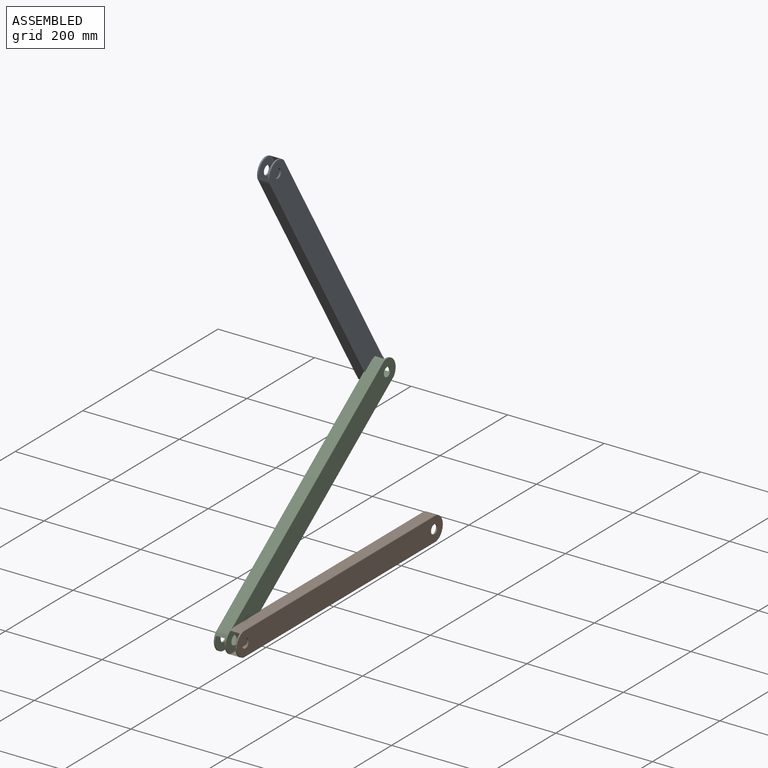
[diagram: assembled view]
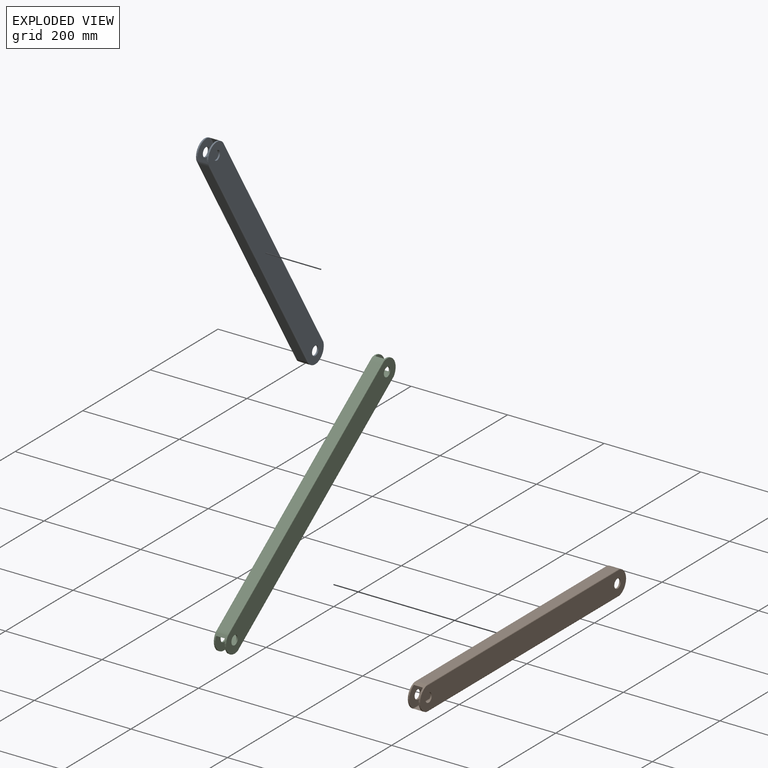
[diagram: exploded view]
GUIDED TOUR — MATED ASSEMBLY (Onshape document 3867bce67e89ffa3d2406594, AutoMate assembly 3867bce67e89ffa3d2406594_331f0cfc6d9f7bca3113b962_40f5c1428207458cdab2e71f_default)

This assembly has 3 components, labeled P0..P2 below (a component is one placed occurrence of a part; the same part can appear more than once), held together by 4 mates. A mate is a constraint between two components; its type names the relative motion it leaves free:
  PARALLEL — keeps the two listed directions parallel,
  REVOLUTE — leaves rotation about the listed axis free (a hinge).
Axis/direction vectors are unit vectors and 'through' points are millimeter coordinates, both in the assembly's world frame.

MATES
  1. REVOLUTE "Revolute 1": P2 <-> P1, axis (1.000, 0.000, 0.000) through (-11.18, -279.40, 0.00) mm
  2. PARALLEL "Parallel 2": P0 <-> P2, direction (1.000, 0.000, 0.000) through (-32.00, 26.16, 568.31) mm
  3. PARALLEL "Parallel 1": P1 <-> P2, direction (-1.000, 0.000, 0.000) through (-12.70, 0.00, 0.00) mm
  4. REVOLUTE "Revolute 2": P0 <-> P2, axis (1.000, 0.000, 0.000) through (-33.53, 171.69, 329.80) mm

ASSEMBLY ORDER
  1. P2 — the base component [order verified]
  2. P0 [order verified]
  3. P1 [order verified]
Order-tag legend:
  [order verified] — this step's position reverses a verified removal order: the component was checked to insert without passing through the ones already placed.

Of the 3 components, 3 carry the full construction recipe — the FeatureScript program that regenerates the part's solid from scratch; the rest are supplied as boundary geometry only.
Each toured component is shown spotlighted twice — in the assembled view, then in the exploded view, where a leader line traces a displaced component back to its assembled socket (saturated green if recipe-attached, orange if geometry-only; every other component desaturated gray) — followed by its recipe or geometry summary and the mates that hold it.
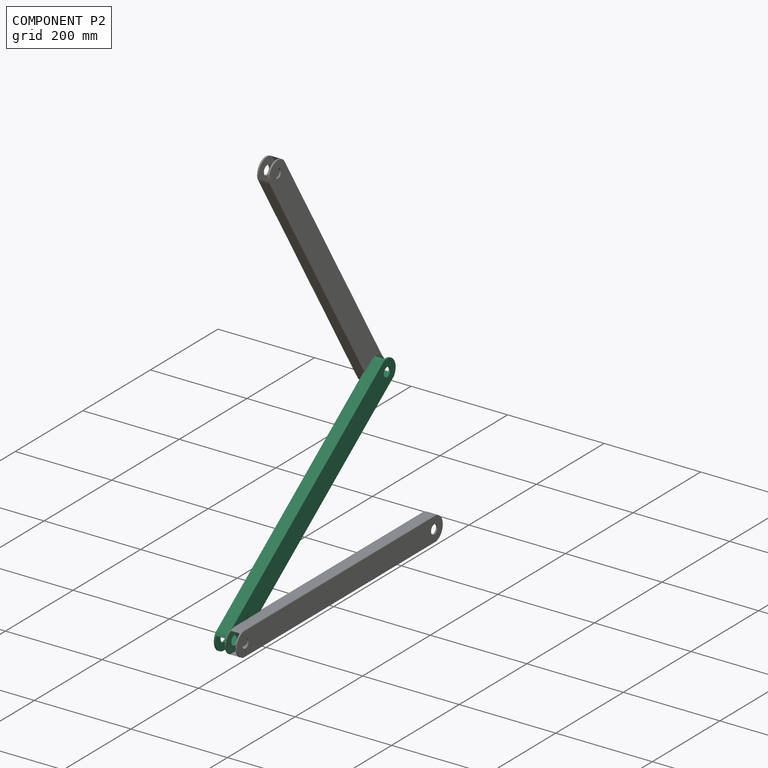
[diagram: component P2 — assembled]
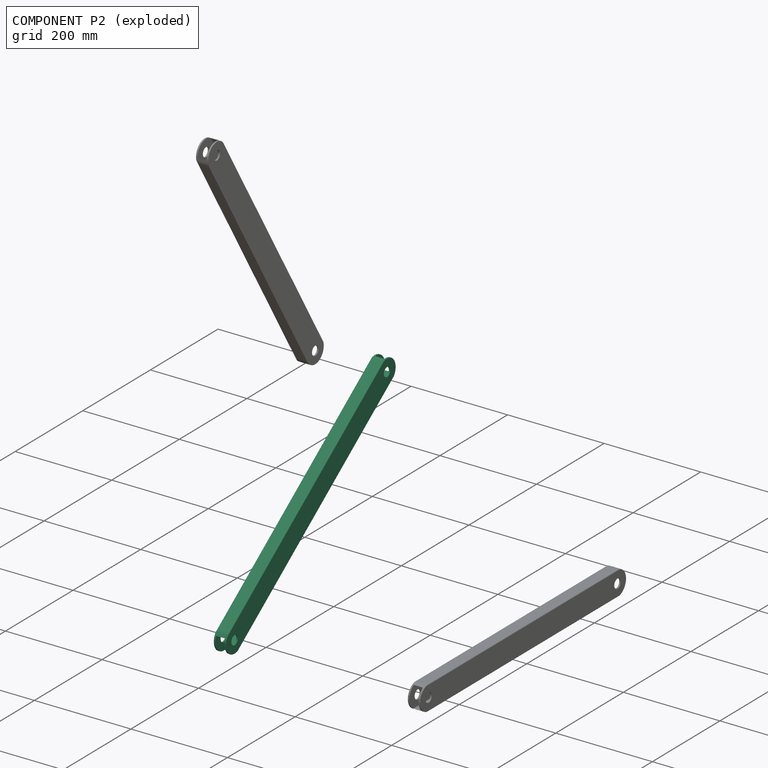
[diagram: component P2 — exploded]
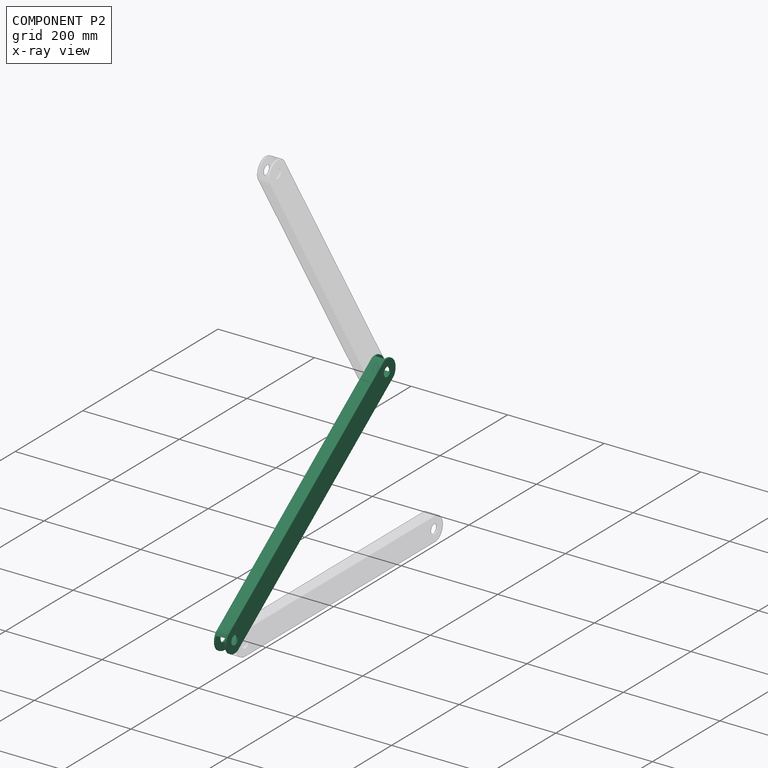
[diagram: component P2 — x-ray view]
COMPONENT P2 — same part as P0 (CADFS 00969226); its construction recipe is shown at P0.
Held by: REVOLUTE mate "Revolute 1" to P1; PARALLEL mate "Parallel 2" to P0; PARALLEL mate "Parallel 1" to P1; REVOLUTE mate "Revolute 2" to P0.
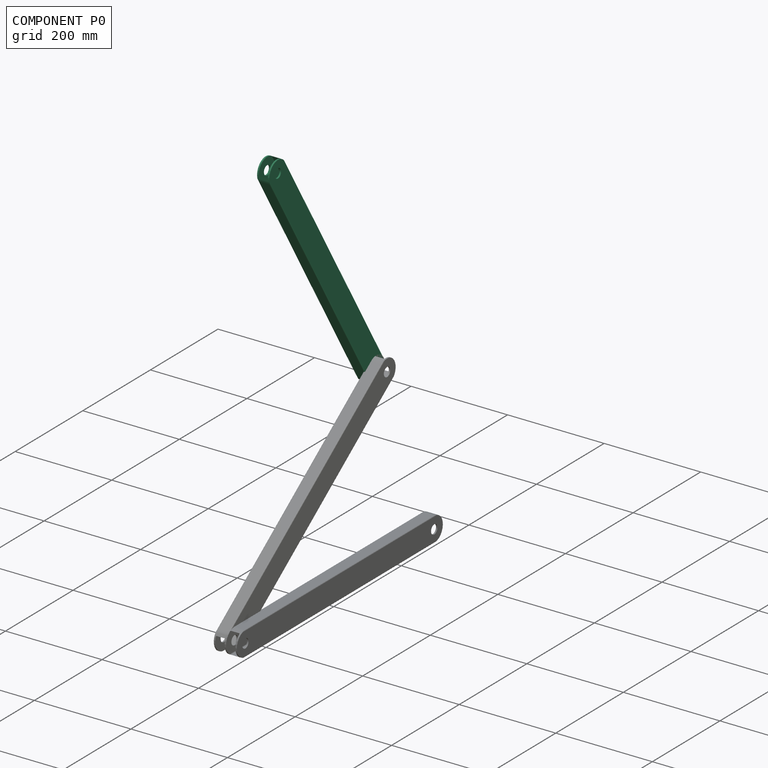
[diagram: component P0 — assembled]
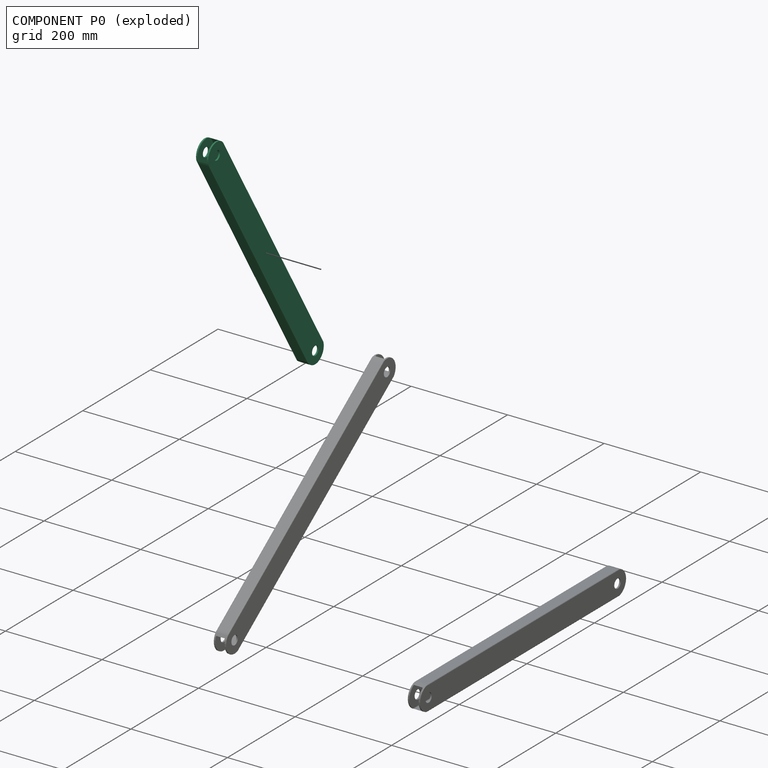
[diagram: component P0 — exploded]
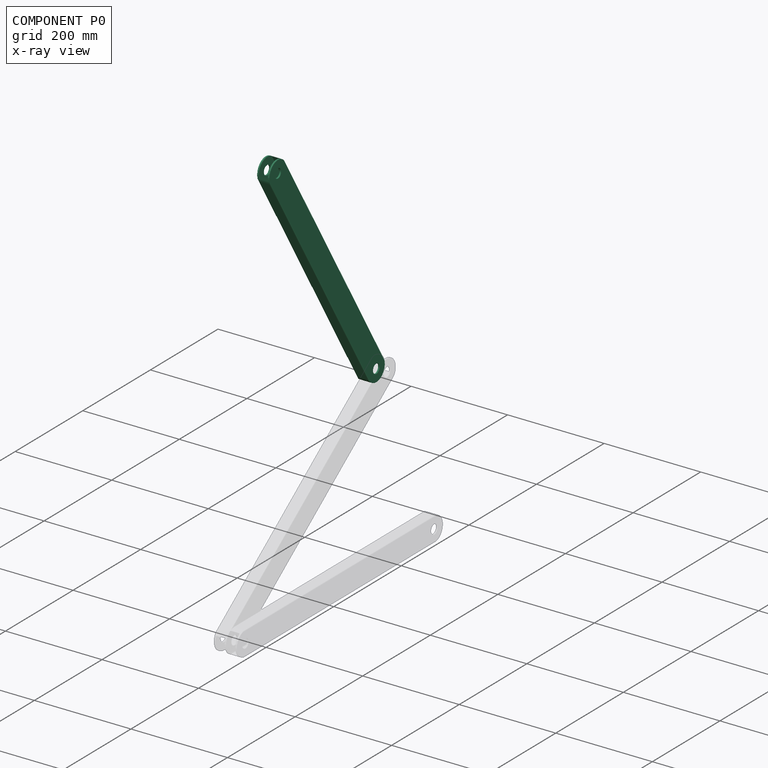
[diagram: component P0 — x-ray view]
COMPONENT P0 — recipe-attached (CADFS 00969226, mesh-verified: the recipe's output STEP matches this component's geometry to below the mesh-comparison resolution (tessellation chordal tolerance ~0.918 mm)).
Held by: PARALLEL mate "Parallel 2" to P2; REVOLUTE mate "Revolute 2" to P2.
Construction recipe (FeatureScript — the CAD program that rebuilds this solid; sketch coordinates are in the units given by the * unit suffixes, e.g. mm):

FeatureScript 1511;
import(path : "onshape/std/geometry.fs", version : "1511.0");
import(path : "onshape/std/common.fs", version : "1511.0");
const mm = millimeter;
const VERTEX = EntityType.VERTEX;
const EDGE = EntityType.EDGE;
const FACE = EntityType.FACE;
const BODY = EntityType.BODY;
function v(x, y){return vector(x, y);}
function OD(order){return orderDisambiguation(order);}
function OSD(set){return originalSetDisambiguation(set);}
function TD(topology){return topologyDisambiguation(topology);}
function TDD(query){return trueDependencyDisambiguation(query);}
function sQuery(a, b, c) {return sketchEntityQuery(a, b, c);}

annotation { "Feature Type Name" : "Feature", "Feature Type Description" : "" }
export const myFeature = defineFeature(function(context is Context, id is Id, definition is map)
    precondition{}
    {
        {
            var Q0;
            Q0=qCreatedBy(makeId("Front.planeOp"),FACE);
            var sketch = newSketch(context, id + "F0", { "sketchPlane" : qUnion([Q0])});
            skLineSegment(sketch, "E0.bottom", {"start": v(11.18, 25.4) * mm, "end": v(-11.18, 25.4) * mm});
            skLineSegment(sketch, "E0.top", {"start": v(11.18, -25.4) * mm, "end": v(-11.18, -25.4) * mm});
            skLineSegment(sketch, "E0.left", {"start": v(12.7, 23.88) * mm, "end": v(12.7, -23.88) * mm});
            skLineSegment(sketch, "E0.right", {"start": v(-12.7, 23.88) * mm, "end": v(-12.7, -23.88) * mm});
            skPoint(sketch, "E0.middle", {"position": v(0, 0) * mm});
            skLineSegment(sketch, "E1.0", {"start": v(8.13, 22.35) * mm, "end": v(-8.13, 22.35) * mm});
            skLineSegment(sketch, "E1.1", {"start": v(9.65, 20.83) * mm, "end": v(9.65, -20.83) * mm});
            skLineSegment(sketch, "E1.2", {"start": v(8.13, -22.35) * mm, "end": v(-8.13, -22.35) * mm});
            skLineSegment(sketch, "E1.3", {"start": v(-9.65, 20.83) * mm, "end": v(-9.65, -20.83) * mm});
            skPoint(sketch, "E2.visualSharp", {"position": v(-12.7, 25.4) * mm});
            skArc(sketch, "E2.filletArc", {"start": v(-11.18, 25.4) * mm, "mid": v(-12.25, 24.95) * mm, "end": v(-12.7, 23.88) * mm});
            skPoint(sketch, "E3.visualSharp", {"position": v(12.7, 25.4) * mm});
            skArc(sketch, "E3.filletArc", {"start": v(12.7, 23.88) * mm, "mid": v(12.25, 24.95) * mm, "end": v(11.18, 25.4) * mm});
            skPoint(sketch, "E4.visualSharp", {"position": v(12.7, -25.4) * mm});
            skArc(sketch, "E4.filletArc", {"start": v(11.18, -25.4) * mm, "mid": v(12.25, -24.95) * mm, "end": v(12.7, -23.88) * mm});
            skPoint(sketch, "E5.visualSharp", {"position": v(-12.7, -25.4) * mm});
            skArc(sketch, "E5.filletArc", {"start": v(-12.7, -23.88) * mm, "mid": v(-12.25, -24.95) * mm, "end": v(-11.18, -25.4) * mm});
            skPoint(sketch, "E6.visualSharp", {"position": v(-9.65, 22.35) * mm});
            skArc(sketch, "E6.filletArc", {"start": v(-8.13, 22.35) * mm, "mid": v(-9.2, 21.9) * mm, "end": v(-9.65, 20.83) * mm});
            skPoint(sketch, "E7.visualSharp", {"position": v(9.65, 22.35) * mm});
            skArc(sketch, "E7.filletArc", {"start": v(9.65, 20.83) * mm, "mid": v(9.2, 21.9) * mm, "end": v(8.13, 22.35) * mm});
            skPoint(sketch, "E8.visualSharp", {"position": v(-9.65, -22.35) * mm});
            skArc(sketch, "E8.filletArc", {"start": v(-9.65, -20.83) * mm, "mid": v(-9.2, -21.9) * mm, "end": v(-8.13, -22.35) * mm});
            skPoint(sketch, "E9.visualSharp", {"position": v(9.65, -22.35) * mm});
            skArc(sketch, "E9.filletArc", {"start": v(8.13, -22.35) * mm, "mid": v(9.2, -21.9) * mm, "end": v(9.65, -20.83) * mm});
            skSolve(sketch);
        }
        {
            var Q0;
            Q0 = qSketchRegion(id + "F0", true);
            extrude(context, id + "F1", {"entities" : qUnion([Q0]), "endBound" : BoundingType.SYMMETRIC, "depth" : 609.6 * mm, "offsetDistance" : 25.4 * mm});
        }
        {
            var Q0;
            Q0=makeQuery(id+"F1.opExtrude","SWEPT_FACE",FACE,{"disambiguationData":[OSD([sQuery(id+"F0.wireOp",EDGE,"E0.left")])]});
            var sketch = newSketch(context, id + "F2", { "sketchPlane" : qUnion([Q0])});
            skCircle(sketch, "E10", {"center": v(-279.4, 0) * mm, "radius": 9.53 * mm});
            skPoint(sketch, "E10.centerSnap0", {"position": v(-304.8, 0) * mm});
            skCircle(sketch, "E11.MirrorC", {"center": v(279.4, 0) * mm, "radius": 9.53 * mm});
            skSolve(sketch);
        }
        {
            var Q0;
            Q0 = qSketchRegion(id + "F2", true);
            extrude(context, id + "F3", {"entities" : qUnion([Q0]), "operationType" : NewBodyOperationType.REMOVE, "oppositeDirection" : true, "depth" : 25.4 * mm, "offsetDistance" : 25.4 * mm});
        }
        {
            var Q0;
            Q0=makeQuery(id+"F1.opExtrude","SWEPT_FACE",FACE,{"disambiguationData":[OSD([sQuery(id+"F0.wireOp",EDGE,"E0.left")])]});
            var sketch = newSketch(context, id + "F4", { "sketchPlane" : qUnion([Q0])});
            skArc(sketch, "E12", {"start": v(-279.4, 25.4) * mm, "mid": v(-304.8, 0) * mm, "end": v(-279.4, -25.4) * mm});
            skLineSegment(sketch, "E13", {"start": v(-279.4, 25.4) * mm, "end": v(-279.4, 43.21) * mm});
            skLineSegment(sketch, "E14", {"start": v(-279.4, 43.21) * mm, "end": v(-315.06, 43.21) * mm});
            skLineSegment(sketch, "E15", {"start": v(-315.06, 43.21) * mm, "end": v(-315.06, -40.74) * mm});
            skLineSegment(sketch, "E16", {"start": v(-315.06, -40.74) * mm, "end": v(-279.4, -40.74) * mm});
            skLineSegment(sketch, "E17", {"start": v(-279.4, -40.74) * mm, "end": v(-279.4, -25.4) * mm});
            skLineSegment(sketch, "E18.MirrorCS", {"start": v(315.06, 43.21) * mm, "end": v(315.06, -40.74) * mm});
            skLineSegment(sketch, "E19.MirrorCS", {"start": v(279.4, 43.21) * mm, "end": v(315.06, 43.21) * mm});
            skLineSegment(sketch, "E20.MirrorCS", {"start": v(279.4, 25.4) * mm, "end": v(279.4, 43.21) * mm});
            skLineSegment(sketch, "E21.MirrorCS", {"start": v(315.06, -40.74) * mm, "end": v(279.4, -40.74) * mm});
            skLineSegment(sketch, "E22.MirrorCS", {"start": v(279.4, -40.74) * mm, "end": v(279.4, -25.4) * mm});
            skArc(sketch, "E23.MirrorCS", {"start": v(279.4, 25.4) * mm, "mid": v(304.8, 0) * mm, "end": v(279.4, -25.4) * mm});
            skSolve(sketch);
        }
        {
            var Q0;
            Q0 = qSketchRegion(id + "F4", true);
            extrude(context, id + "F5", {"entities" : qUnion([Q0]), "operationType" : NewBodyOperationType.REMOVE, "oppositeDirection" : true, "depth" : 25.4 * mm, "offsetDistance" : 25.4 * mm});
        }
    });
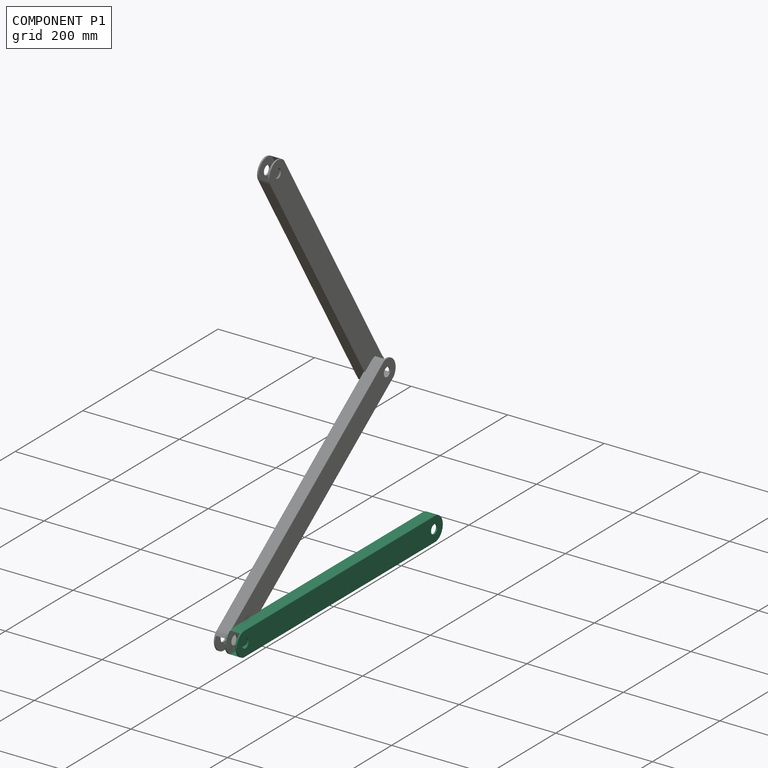
[diagram: component P1 — assembled]
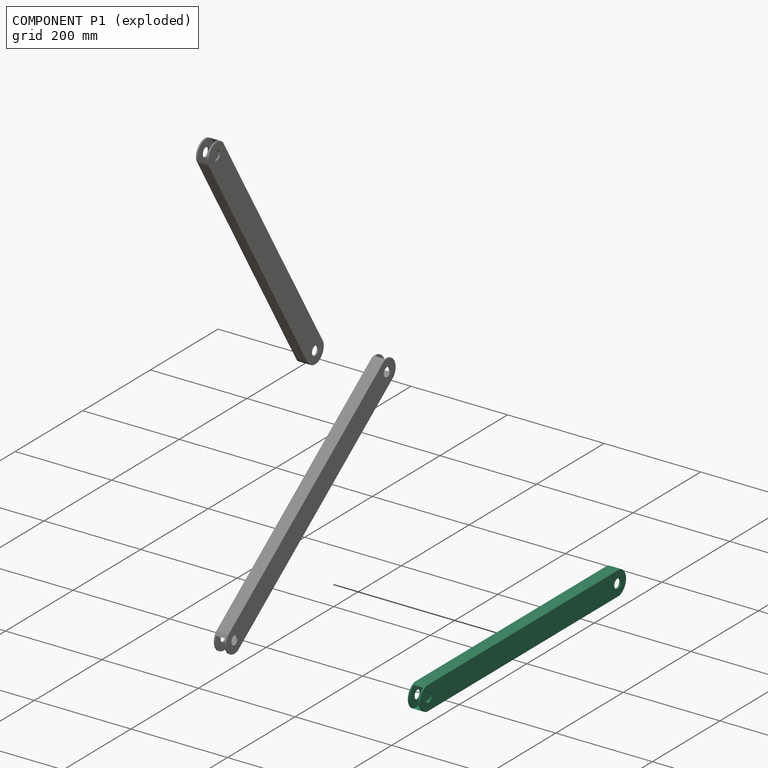
[diagram: component P1 — exploded]
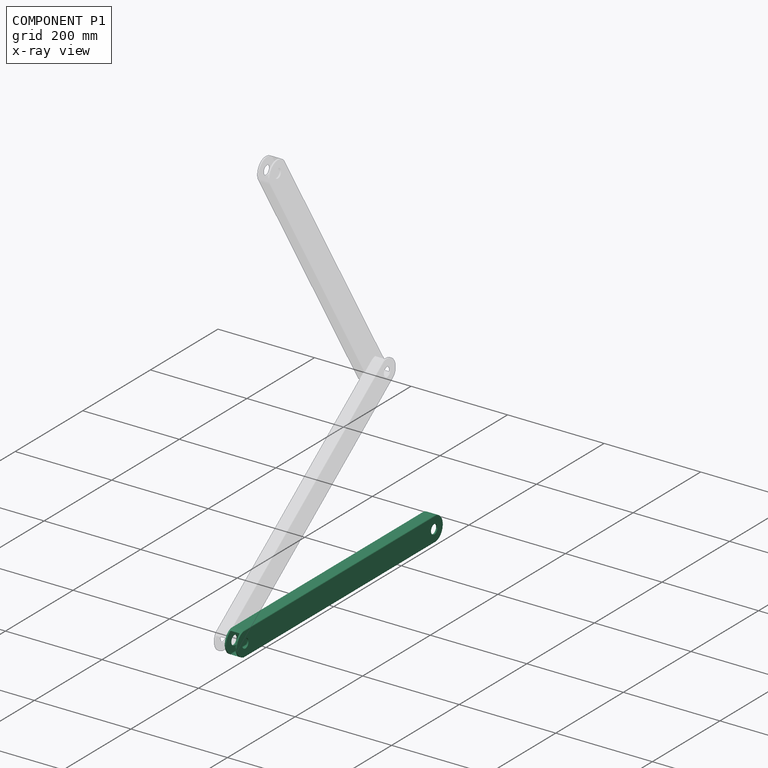
[diagram: component P1 — x-ray view]
COMPONENT P1 — same part as P0 (CADFS 00969226); its construction recipe is shown at P0.
Held by: REVOLUTE mate "Revolute 1" to P2; PARALLEL mate "Parallel 1" to P2.
PROVENANCE & LICENSES
Assembly (occurrences, transforms, mates, per-part STEP geometry): AutoMate dataset, Zenodo record 7776208, CC0.
Construction recipes: CADFS (HuggingFace VladPyatov/CADFS, CC-BY-4.0, layered over the ABC dataset), FeatureScript reconstruction programs keyed by ABC model id.
Join: ABC meta listings map ABC model id -> Onshape documentId; within a shared document, parts are matched by geometric signature (bounding-box dims + volume at 0.1% relative tolerance, exact B-rep face/solid counts).
Verification: 3 of this assembly's 3 components carry a recipe attachment, and every attachment is mesh-verified: the CADFS STEP and the AutoMate member STEP were compared as meshes in their shared local frame (symmetric sampled-point-to-mesh distance); worst across the 3 attachments: below the mesh-comparison resolution (tessellation chordal tolerance ~0.918 mm) on a 612 mm part.
Renders: orthographic iso camera (az 35 / el 25); the floor grid conveys scale (grid pitch printed in each image; no ruler). In the exploded view each component is displaced by its stored offset vector: the offsets alone carry the explosion direction (mate normal/axis signs are not orientation cues and do not encode it), and separation distances are assigned per mate-chain, not proportionally to assembly-order depth.
